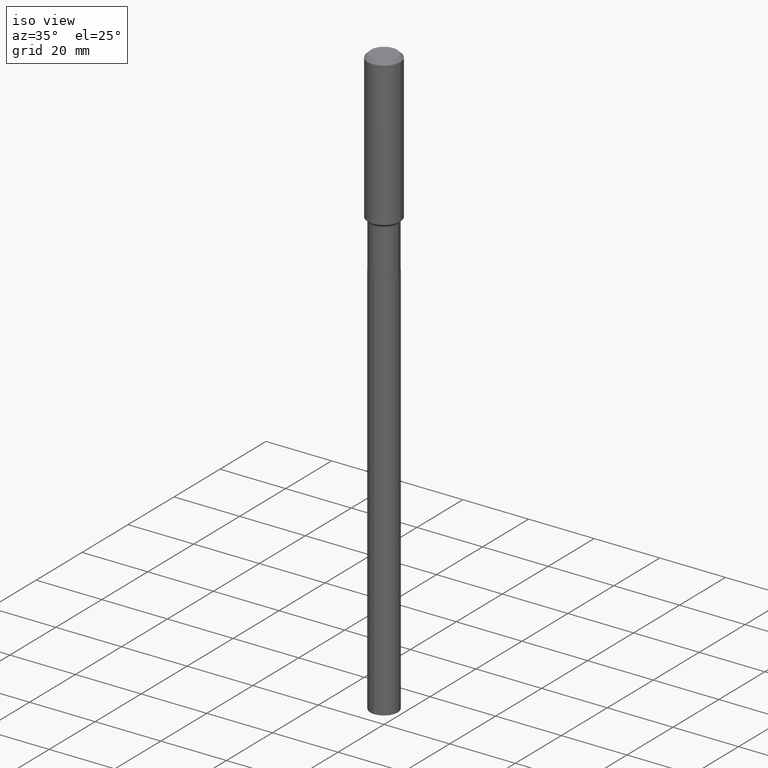
[diagram: clean part render]
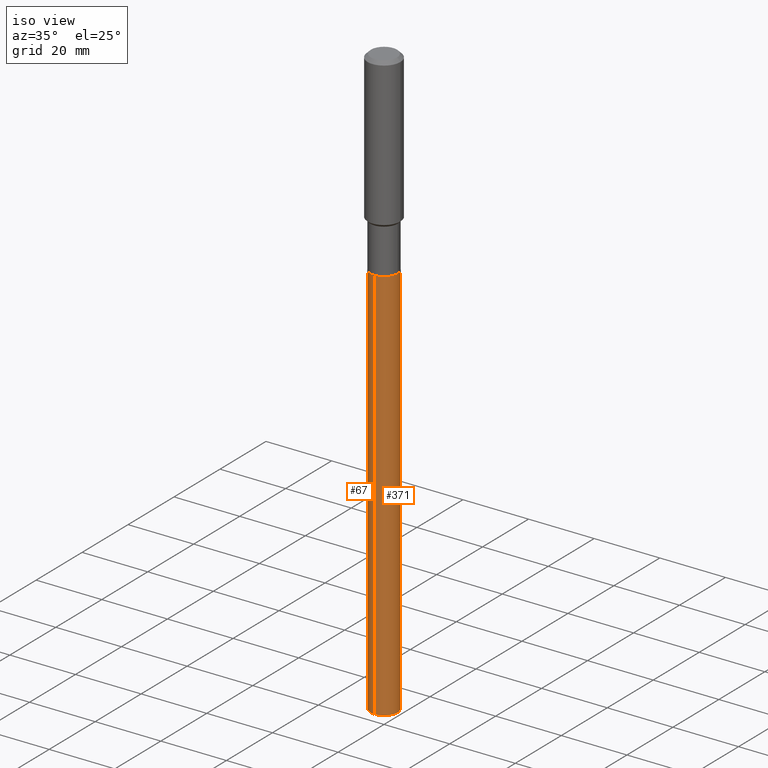
[diagram: same view with one multi-face feature highlighted, each face labeled with its STEP entity id]
A machine part, iso view. The highlighted faces form ONE feature: a constant-radius fillet chain: 2 tangent blend faces with common blend radius 4.1669 mm. The faces share edges in the B-rep.
Their STEP definitions:
[1] entity #371 (Cylinder):
#33 = CARTESIAN_POINT ( 'NONE',  ( 1.165645358014617717E-15, 0.1640499999999751601, -7.100378986475369913 ) ) ;
#45 = VERTEX_POINT ( 'NONE', #249 ) ;
#48 = VERTEX_POINT ( 'NONE', #361 ) ;
#50 = FACE_OUTER_BOUND ( 'NONE', #317, .T. ) ;
#62 = LINE ( 'NONE', #182, #243 ) ;
#87 = ORIENTED_EDGE ( 'NONE', *, *, #350, .F. ) ;
#104 = ORIENTED_EDGE ( 'NONE', *, *, #132, .F. ) ;
#109 = ORIENTED_EDGE ( 'NONE', *, *, #445, .T. ) ;
#132 = EDGE_CURVE ( 'NONE', #48, #314, #62, .T. ) ;
#139 = DIRECTION ( 'NONE',  ( -6.982962677686265133E-15, -1.000000000000000000, 3.330506545156066257E-15 ) ) ;
#146 = CARTESIAN_POINT ( 'NONE',  ( 1.736385353301688746E-28, -2.479070008840053983E-14, -7.100378986475368137 ) ) ;
#158 = CARTESIAN_POINT ( 'NONE',  ( 5.727532490966208999E-29, -8.177398443704531239E-15, -2.342100000000000293 ) ) ;
#159 = DIRECTION ( 'NONE',  ( -2.445489445895254572E-29, 3.491451781603517601E-15, 1.000000000000000000 ) ) ;
#172 = DIRECTION ( 'NONE',  ( -2.445489445895254292E-29, 3.491451781603517601E-15, 1.000000000000000000 ) ) ;
#182 = CARTESIAN_POINT ( 'NONE',  ( -1.145555027274374667E-15, -0.1640500000000081615, -2.342099999999999405 ) ) ;
#185 = AXIS2_PLACEMENT_3D ( 'NONE', #337, #172, #307 ) ;
#199 = VERTEX_POINT ( 'NONE', #33 ) ;
#206 = CARTESIAN_POINT ( 'NONE',  ( -1.145555027274374667E-15, -0.1640500000000081615, -2.342099999999999405 ) ) ;
#222 = LINE ( 'NONE', #367, #245 ) ;
#243 = VECTOR ( 'NONE', #358, 39.37007874015748143 ) ;
#245 = VECTOR ( 'NONE', #159, 39.37007874015748143 ) ;
#249 = CARTESIAN_POINT ( 'NONE',  ( 1.165645358014618506E-15, 0.1640499999999918412, -2.342100000000000737 ) ) ;
#253 = EDGE_CURVE ( 'NONE', #48, #199, #421, .T. ) ;
#263 = AXIS2_PLACEMENT_3D ( 'NONE', #158, #344, #139 ) ;
#277 = DIRECTION ( 'NONE',  ( -2.445489445895254292E-29, 3.491451781603517601E-15, 1.000000000000000000 ) ) ;
#307 = DIRECTION ( 'NONE',  ( -6.982962677686265133E-15, -1.000000000000000000, 3.330506545156066257E-15 ) ) ;
#314 = VERTEX_POINT ( 'NONE', #206 ) ;
#317 = EDGE_LOOP ( 'NONE', ( #347, #109, #87, #104 ) ) ;
#337 = CARTESIAN_POINT ( 'NONE',  ( 5.727532490966208999E-29, -8.177398443704531239E-15, -2.342100000000000293 ) ) ;
#344 = DIRECTION ( 'NONE',  ( -2.445489445895254292E-29, 3.491451781603517601E-15, 1.000000000000000000 ) ) ;
#347 = ORIENTED_EDGE ( 'NONE', *, *, #253, .T. ) ;
#348 = CYLINDRICAL_SURFACE ( 'NONE', #185, 0.1640500000000000014 ) ;
#350 = EDGE_CURVE ( 'NONE', #314, #45, #487, .T. ) ;
#358 = DIRECTION ( 'NONE',  ( -2.445489445895254572E-29, 3.491451781603517601E-15, 1.000000000000000000 ) ) ;
#361 = CARTESIAN_POINT ( 'NONE',  ( -1.145555027274257916E-15, -0.1640500000000247594, -7.100378986475367249 ) ) ;
#367 = CARTESIAN_POINT ( 'NONE',  ( 1.165645358014501360E-15, 0.1640499999999918412, -2.342100000000000737 ) ) ;
#371 = ADVANCED_FACE ( 'NONE', ( #50 ), #348, .T. ) ;
#413 = AXIS2_PLACEMENT_3D ( 'NONE', #146, #277, #434 ) ;
#421 = CIRCLE ( 'NONE', #413, 0.1640500000000000014 ) ;
#434 = DIRECTION ( 'NONE',  ( -6.982962677686265133E-15, -1.000000000000000000, 6.661013090312132514E-15 ) ) ;
#445 = EDGE_CURVE ( 'NONE', #199, #45, #222, .T. ) ;
#487 = CIRCLE ( 'NONE', #263, 0.1640500000000000014 ) ;
[2] entity #67 (Cylinder):
#6 = CIRCLE ( 'NONE', #84, 0.1640500000000000014 ) ;
#33 = CARTESIAN_POINT ( 'NONE',  ( 1.165645358014617717E-15, 0.1640499999999751601, -7.100378986475369913 ) ) ;
#45 = VERTEX_POINT ( 'NONE', #249 ) ;
#48 = VERTEX_POINT ( 'NONE', #361 ) ;
#55 = AXIS2_PLACEMENT_3D ( 'NONE', #119, #403, #70 ) ;
#62 = LINE ( 'NONE', #182, #243 ) ;
#67 = ADVANCED_FACE ( 'NONE', ( #156 ), #449, .T. ) ;
#70 = DIRECTION ( 'NONE',  ( -6.982962677686265133E-15, -1.000000000000000000, 3.330506545156066257E-15 ) ) ;
#84 = AXIS2_PLACEMENT_3D ( 'NONE', #265, #301, #339 ) ;
#85 = ORIENTED_EDGE ( 'NONE', *, *, #132, .T. ) ;
#119 = CARTESIAN_POINT ( 'NONE',  ( 5.727532490966208999E-29, -8.177398443704531239E-15, -2.342100000000000293 ) ) ;
#132 = EDGE_CURVE ( 'NONE', #48, #314, #62, .T. ) ;
#156 = FACE_OUTER_BOUND ( 'NONE', #181, .T. ) ;
#159 = DIRECTION ( 'NONE',  ( -2.445489445895254572E-29, 3.491451781603517601E-15, 1.000000000000000000 ) ) ;
#181 = EDGE_LOOP ( 'NONE', ( #418, #460, #85, #458 ) ) ;
#182 = CARTESIAN_POINT ( 'NONE',  ( -1.145555027274374667E-15, -0.1640500000000081615, -2.342099999999999405 ) ) ;
#199 = VERTEX_POINT ( 'NONE', #33 ) ;
#206 = CARTESIAN_POINT ( 'NONE',  ( -1.145555027274374667E-15, -0.1640500000000081615, -2.342099999999999405 ) ) ;
#215 = EDGE_CURVE ( 'NONE', #45, #314, #6, .T. ) ;
#222 = LINE ( 'NONE', #367, #245 ) ;
#243 = VECTOR ( 'NONE', #358, 39.37007874015748143 ) ;
#245 = VECTOR ( 'NONE', #159, 39.37007874015748143 ) ;
#249 = CARTESIAN_POINT ( 'NONE',  ( 1.165645358014618506E-15, 0.1640499999999918412, -2.342100000000000737 ) ) ;
#265 = CARTESIAN_POINT ( 'NONE',  ( 5.727532490966208999E-29, -8.177398443704531239E-15, -2.342100000000000293 ) ) ;
#283 = CIRCLE ( 'NONE', #440, 0.1640500000000000014 ) ;
#293 = DIRECTION ( 'NONE',  ( -2.445489445895254292E-29, 3.491451781603517601E-15, 1.000000000000000000 ) ) ;
#301 = DIRECTION ( 'NONE',  ( -2.445489445895254292E-29, 3.491451781603517601E-15, 1.000000000000000000 ) ) ;
#314 = VERTEX_POINT ( 'NONE', #206 ) ;
#327 = CARTESIAN_POINT ( 'NONE',  ( 1.736385353301688746E-28, -2.479070008840053983E-14, -7.100378986475368137 ) ) ;
#339 = DIRECTION ( 'NONE',  ( -6.982962677686265133E-15, -1.000000000000000000, 3.330506545156066257E-15 ) ) ;
#358 = DIRECTION ( 'NONE',  ( -2.445489445895254572E-29, 3.491451781603517601E-15, 1.000000000000000000 ) ) ;
#361 = CARTESIAN_POINT ( 'NONE',  ( -1.145555027274257916E-15, -0.1640500000000247594, -7.100378986475367249 ) ) ;
#367 = CARTESIAN_POINT ( 'NONE',  ( 1.165645358014501360E-15, 0.1640499999999918412, -2.342100000000000737 ) ) ;
#397 = DIRECTION ( 'NONE',  ( -6.982962677686265133E-15, -1.000000000000000000, 6.661013090312132514E-15 ) ) ;
#403 = DIRECTION ( 'NONE',  ( -2.445489445895254292E-29, 3.491451781603517601E-15, 1.000000000000000000 ) ) ;
#418 = ORIENTED_EDGE ( 'NONE', *, *, #445, .F. ) ;
#440 = AXIS2_PLACEMENT_3D ( 'NONE', #327, #293, #397 ) ;
#445 = EDGE_CURVE ( 'NONE', #199, #45, #222, .T. ) ;
#449 = CYLINDRICAL_SURFACE ( 'NONE', #55, 0.1640500000000000014 ) ;
#458 = ORIENTED_EDGE ( 'NONE', *, *, #215, .F. ) ;
#460 = ORIENTED_EDGE ( 'NONE', *, *, #490, .T. ) ;
#490 = EDGE_CURVE ( 'NONE', #199, #48, #283, .T. ) ;